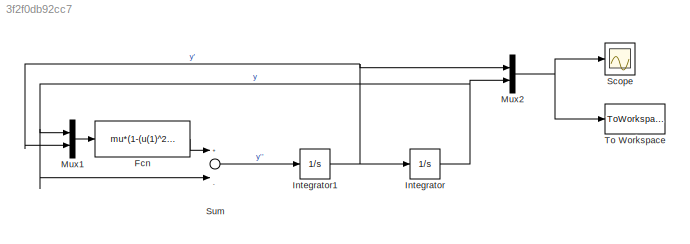
MODEL slx_3f2f0db92cc7
KIND model
BLOCK [Fcn] Fcn
  Expr = mu*(1-(u(1)^2))*u(2)
BLOCK [Integrator] Integrator
  InitialCondition = param.ic(2)
  Ports = [1, 1]
BLOCK [Integrator] Integrator1
  InitialCondition = param.ic(1)
  Ports = [1, 1]
BLOCK [Mux] Mux1
  DisplayOption = bar
  Inputs = 2
  Ports = [2, 1]
BLOCK [Mux] Mux2
  DisplayOption = bar
  Inputs = 2
  Ports = [2, 1]
BLOCK [Scope] Scope
  Floating = off
  LegendLocations = 0.68997      0.6778     0.19172     0.14089
  LimitDataPoints = off
  NumInputPorts = 1
  Ports = [1]
  ShowLegends = on
BLOCK [Sum] Sum
  InputSameDT = off
  Inputs = +|-
  OutDataTypeStr = Inherit: Inherit via internal rule
  Ports = [2, 1]
  SaturateOnIntegerOverflow = off
BLOCK [ToWorkspace] To Workspace
  FixptAsFi = on
  MaxDataPoints = inf
  Ports = [1]
  SampleTime = -1
  Save2DSignal = 3-D array (concatenate along third dimension)
  SaveFormat = Timeseries
  VariableName = simout
LINE Fcn:1 -> Sum:1
NET Integrator1:1 -> Integrator:1, Mux1:2, Mux2:1
NET Integrator:1 -> Mux1:1, Mux2:2, Sum:2
LINE Mux1:1 -> Fcn:1
NET Mux2:1 -> Scope:1, To Workspace:1
LINE Sum:1 -> Integrator1:1
note: NET lines group one-source signal fan-out (src -> all destinations, sorted); 1:1 wires keep LINE
